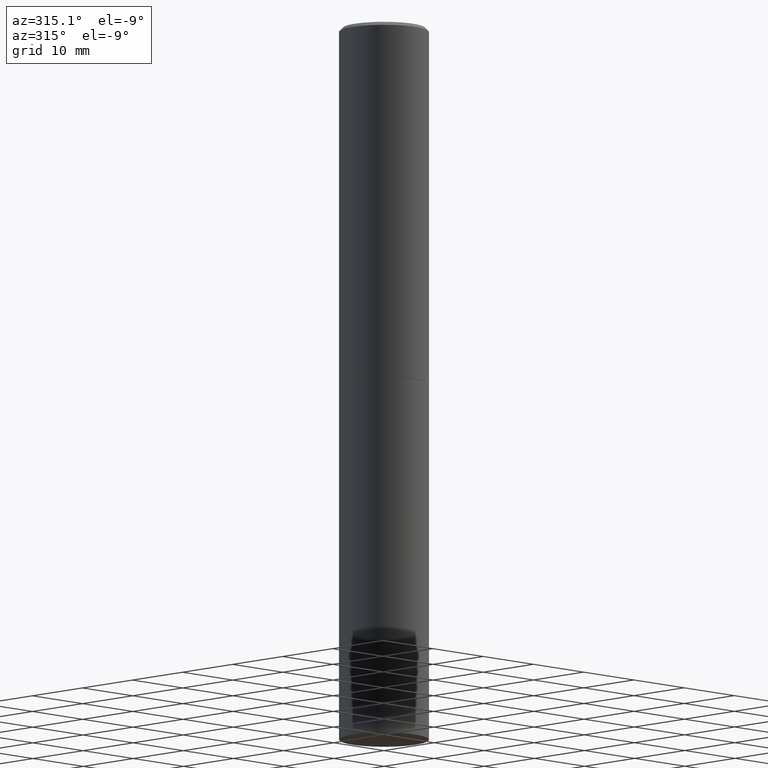
[diagram: clean part render]
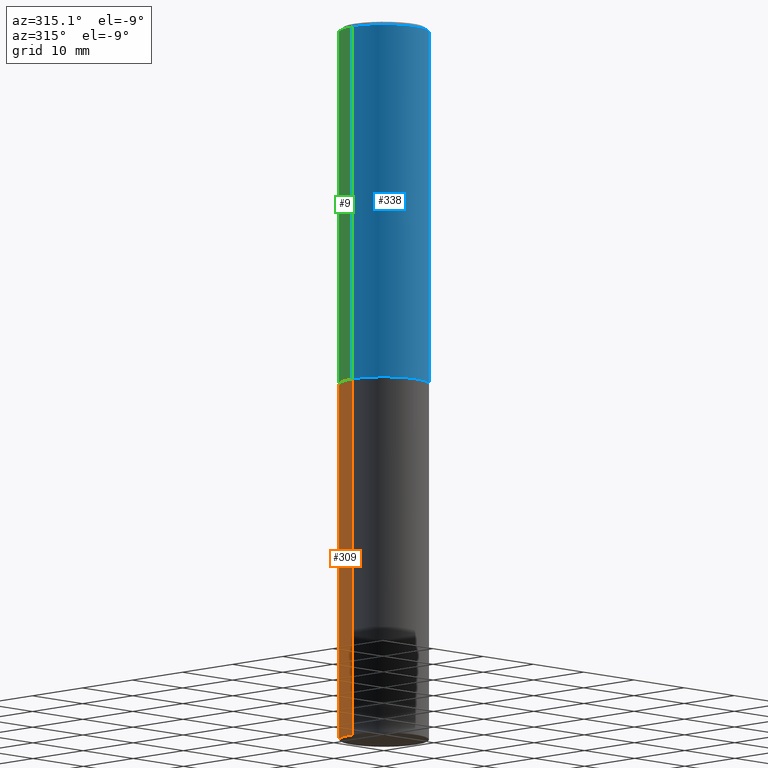
[diagram: same view with three faces highlighted in distinct colors, each labeled with its STEP entity id]
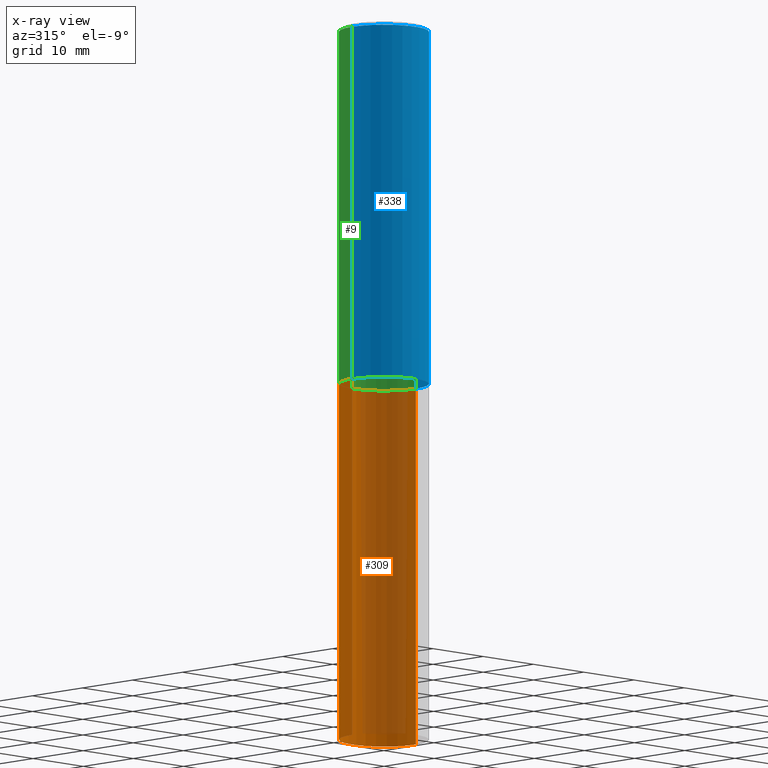
[diagram: x-ray of the same camera — body ghosted, the three highlighted faces saturated]
A machine part, auxiliary view with three faces highlighted in distinct colors.
The next image is the same camera in x-ray (body ghosted, the three faces saturated) — at least one of them is partly hidden behind the body in this view.
Their STEP definitions:

[orange] entity #309 — the highlighted cylindrical surface (partial cylindrical patch) has radius 6.35 mm, axis along (-0, 0, 1).
#8 = LINE ( 'NONE', #68, #218 ) ;
#11 = FACE_OUTER_BOUND ( 'NONE', #330, .T. ) ;
#12 = DIRECTION ( 'NONE',  ( -2.445468806185136877E-29, 3.491481338843145188E-15, 1.000000000000000000 ) ) ;
#17 = CARTESIAN_POINT ( 'NONE',  ( 0.2500000000000000000, -1.571166602479415059E-14, -4.000000000000000000 ) ) ;
#20 = LINE ( 'NONE', #161, #22 ) ;
#22 = VECTOR ( 'NONE', #12, 39.37007874015748143 ) ;
#23 = EDGE_CURVE ( 'NONE', #257, #217, #50, .T. ) ;
#35 = DIRECTION ( 'NONE',  ( 1.000000000000000000, -6.982962677686270655E-15, 0.000000000000000000 ) ) ;
#42 = DIRECTION ( 'NONE',  ( -2.445468806185136597E-29, 3.491481338843145583E-15, 1.000000000000000000 ) ) ;
#44 = CIRCLE ( 'NONE', #310, 0.2500000000000000000 ) ;
#50 = CIRCLE ( 'NONE', #81, 0.2500000000000000000 ) ;
#58 = ORIENTED_EDGE ( 'NONE', *, *, #241, .F. ) ;
#68 = CARTESIAN_POINT ( 'NONE',  ( -0.2500000000000000000, 1.776356839400250465E-15, -1.229733772563726445E-29 ) ) ;
#71 = AXIS2_PLACEMENT_3D ( 'NONE', #305, #254, #308 ) ;
#81 = AXIS2_PLACEMENT_3D ( 'NONE', #201, #183, #35 ) ;
#104 = EDGE_CURVE ( 'NONE', #257, #115, #20, .T. ) ;
#115 = VERTEX_POINT ( 'NONE', #187 ) ;
#123 = CARTESIAN_POINT ( 'NONE',  ( 4.890937612370273194E-29, -6.982962677686291165E-15, -2.000000000000000000 ) ) ;
#127 = ORIENTED_EDGE ( 'NONE', *, *, #231, .T. ) ;
#160 = DIRECTION ( 'NONE',  ( 1.000000000000000000, -6.982962677686266711E-15, 0.000000000000000000 ) ) ;
#161 = CARTESIAN_POINT ( 'NONE',  ( 0.2500000000000000000, -1.745740669421566678E-15, 1.219044193948983948E-29 ) ) ;
#183 = DIRECTION ( 'NONE',  ( -2.445468806185136597E-29, 3.491481338843145583E-15, 1.000000000000000000 ) ) ;
#186 = CYLINDRICAL_SURFACE ( 'NONE', #71, 0.2500000000000000000 ) ;
#187 = CARTESIAN_POINT ( 'NONE',  ( 0.2500000000000000000, -8.728703347107857054E-15, -2.000000000000000000 ) ) ;
#201 = CARTESIAN_POINT ( 'NONE',  ( 9.781875224740546387E-29, -1.396592535537258233E-14, -4.000000000000000000 ) ) ;
#211 = CARTESIAN_POINT ( 'NONE',  ( -0.2500000000000000000, -8.698087177129185889E-15, -4.000000000000000000 ) ) ;
#217 = VERTEX_POINT ( 'NONE', #211 ) ;
#218 = VECTOR ( 'NONE', #297, 39.37007874015748143 ) ;
#222 = ORIENTED_EDGE ( 'NONE', *, *, #23, .T. ) ;
#231 = EDGE_CURVE ( 'NONE', #217, #301, #8, .T. ) ;
#241 = EDGE_CURVE ( 'NONE', #115, #301, #44, .T. ) ;
#254 = DIRECTION ( 'NONE',  ( -2.445468806185136597E-29, 3.491481338843145583E-15, 1.000000000000000000 ) ) ;
#257 = VERTEX_POINT ( 'NONE', #17 ) ;
#294 = CARTESIAN_POINT ( 'NONE',  ( -0.2500000000000000000, -8.698087177129185889E-15, -2.000000000000000000 ) ) ;
#297 = DIRECTION ( 'NONE',  ( -2.445468806185136877E-29, 3.491481338843145188E-15, 1.000000000000000000 ) ) ;
#301 = VERTEX_POINT ( 'NONE', #294 ) ;
#305 = CARTESIAN_POINT ( 'NONE',  ( 0.000000000000000000, 0.000000000000000000, 0.000000000000000000 ) ) ;
#308 = DIRECTION ( 'NONE',  ( 1.000000000000000000, -6.982962677686266711E-15, 4.876176775795935793E-29 ) ) ;
#309 = ADVANCED_FACE ( 'NONE', ( #11 ), #186, .T. ) ;
#310 = AXIS2_PLACEMENT_3D ( 'NONE', #123, #42, #160 ) ;
#330 = EDGE_LOOP ( 'NONE', ( #222, #127, #58, #334 ) ) ;
#334 = ORIENTED_EDGE ( 'NONE', *, *, #104, .F. ) ;

[blue] entity #338 — the highlighted cylindrical surface (partial cylindrical patch) has radius 6.35 mm, axis along (-0, 0, 1).
#13 = EDGE_CURVE ( 'NONE', #224, #145, #239, .T. ) ;
#14 = LINE ( 'NONE', #63, #326 ) ;
#16 = VERTEX_POINT ( 'NONE', #236 ) ;
#21 = CARTESIAN_POINT ( 'NONE',  ( 0.2499999999999998890, -1.745740669421565889E-15, 1.219044193948983388E-29 ) ) ;
#32 = DIRECTION ( 'NONE',  ( -2.445468806185136597E-29, 3.491481338843145583E-15, 1.000000000000000000 ) ) ;
#47 = DIRECTION ( 'NONE',  ( -2.445468806185136597E-29, 3.491481338843145583E-15, 1.000000000000000000 ) ) ;
#51 = EDGE_CURVE ( 'NONE', #145, #70, #277, .T. ) ;
#53 = EDGE_CURVE ( 'NONE', #16, #70, #65, .T. ) ;
#63 = CARTESIAN_POINT ( 'NONE',  ( -0.2499999999999998890, 1.776356839400249676E-15, -1.229733772563726025E-29 ) ) ;
#64 = DIRECTION ( 'NONE',  ( -2.445468806185136597E-29, 3.491481338843145583E-15, 1.000000000000000000 ) ) ;
#65 = CIRCLE ( 'NONE', #333, 0.2499999999999998057 ) ;
#70 = VERTEX_POINT ( 'NONE', #247 ) ;
#74 = CARTESIAN_POINT ( 'NONE',  ( 0.000000000000000000, 0.000000000000000000, 0.000000000000000000 ) ) ;
#103 = ORIENTED_EDGE ( 'NONE', *, *, #53, .F. ) ;
#133 = AXIS2_PLACEMENT_3D ( 'NONE', #74, #47, #325 ) ;
#134 = CARTESIAN_POINT ( 'NONE',  ( 0.2500000000000000000, -8.725211865769014047E-15, -1.998999999999999888 ) ) ;
#140 = ORIENTED_EDGE ( 'NONE', *, *, #184, .F. ) ;
#145 = VERTEX_POINT ( 'NONE', #134 ) ;
#148 = DIRECTION ( 'NONE',  ( 1.000000000000000000, -6.982962677686266711E-15, 0.000000000000000000 ) ) ;
#174 = VECTOR ( 'NONE', #364, 39.37007874015748143 ) ;
#184 = EDGE_CURVE ( 'NONE', #224, #16, #14, .T. ) ;
#224 = VERTEX_POINT ( 'NONE', #322 ) ;
#229 = ORIENTED_EDGE ( 'NONE', *, *, #51, .T. ) ;
#236 = CARTESIAN_POINT ( 'NONE',  ( -0.2499999999999998057, 1.675911042644702196E-15, -0.02000000000000006287 ) ) ;
#239 = CIRCLE ( 'NONE', #292, 0.2500000000000000000 ) ;
#242 = EDGE_LOOP ( 'NONE', ( #140, #261, #229, #103 ) ) ;
#247 = CARTESIAN_POINT ( 'NONE',  ( 0.2499999999999998057, -1.784954126219744611E-15, -0.02000000000000006287 ) ) ;
#261 = ORIENTED_EDGE ( 'NONE', *, *, #13, .T. ) ;
#277 = LINE ( 'NONE', #21, #174 ) ;
#292 = AXIS2_PLACEMENT_3D ( 'NONE', #318, #64, #350 ) ;
#318 = CARTESIAN_POINT ( 'NONE',  ( 4.888492143564087591E-29, -6.979471196347447369E-15, -1.998999999999999888 ) ) ;
#322 = CARTESIAN_POINT ( 'NONE',  ( -0.2500000000000000000, -1.748293572161903489E-15, -1.998999999999999888 ) ) ;
#325 = DIRECTION ( 'NONE',  ( 1.000000000000000000, -6.982962677686266711E-15, 4.876176775795935793E-29 ) ) ;
#326 = VECTOR ( 'NONE', #349, 39.37007874015748143 ) ;
#328 = FACE_OUTER_BOUND ( 'NONE', #242, .T. ) ;
#331 = CARTESIAN_POINT ( 'NONE',  ( 4.890937612370288923E-31, -6.982962677686312563E-17, -0.02000000000000006287 ) ) ;
#333 = AXIS2_PLACEMENT_3D ( 'NONE', #331, #32, #148 ) ;
#335 = CYLINDRICAL_SURFACE ( 'NONE', #133, 0.2499999999999998890 ) ;
#338 = ADVANCED_FACE ( 'NONE', ( #328 ), #335, .T. ) ;
#349 = DIRECTION ( 'NONE',  ( -2.445468806185136877E-29, 3.491481338843145188E-15, 1.000000000000000000 ) ) ;
#350 = DIRECTION ( 'NONE',  ( 1.000000000000000000, -6.982962677686266711E-15, 0.000000000000000000 ) ) ;
#364 = DIRECTION ( 'NONE',  ( -2.445468806185136877E-29, 3.491481338843145188E-15, 1.000000000000000000 ) ) ;

[green] entity #9 — the highlighted cylindrical surface (partial cylindrical patch) has radius 6.35 mm, axis along (-0, 0, 1).
#2 = CARTESIAN_POINT ( 'NONE',  ( 4.888492143564087591E-29, -6.979471196347447369E-15, -1.998999999999999888 ) ) ;
#6 = DIRECTION ( 'NONE',  ( -2.445468806185136597E-29, 3.491481338843145583E-15, 1.000000000000000000 ) ) ;
#9 = ADVANCED_FACE ( 'NONE', ( #38 ), #62, .T. ) ;
#14 = LINE ( 'NONE', #63, #326 ) ;
#16 = VERTEX_POINT ( 'NONE', #236 ) ;
#21 = CARTESIAN_POINT ( 'NONE',  ( 0.2499999999999998890, -1.745740669421565889E-15, 1.219044193948983388E-29 ) ) ;
#25 = ORIENTED_EDGE ( 'NONE', *, *, #332, .T. ) ;
#38 = FACE_OUTER_BOUND ( 'NONE', #142, .T. ) ;
#45 = ORIENTED_EDGE ( 'NONE', *, *, #184, .T. ) ;
#51 = EDGE_CURVE ( 'NONE', #145, #70, #277, .T. ) ;
#62 = CYLINDRICAL_SURFACE ( 'NONE', #287, 0.2499999999999998890 ) ;
#63 = CARTESIAN_POINT ( 'NONE',  ( -0.2499999999999998890, 1.776356839400249676E-15, -1.229733772563726025E-29 ) ) ;
#70 = VERTEX_POINT ( 'NONE', #247 ) ;
#77 = DIRECTION ( 'NONE',  ( -2.445468806185136597E-29, 3.491481338843145583E-15, 1.000000000000000000 ) ) ;
#89 = DIRECTION ( 'NONE',  ( 1.000000000000000000, -6.982962677686266711E-15, 4.876176775795935793E-29 ) ) ;
#106 = ORIENTED_EDGE ( 'NONE', *, *, #111, .F. ) ;
#111 = EDGE_CURVE ( 'NONE', #70, #16, #356, .T. ) ;
#114 = DIRECTION ( 'NONE',  ( 1.000000000000000000, -6.982962677686266711E-15, 0.000000000000000000 ) ) ;
#117 = AXIS2_PLACEMENT_3D ( 'NONE', #291, #6, #128 ) ;
#121 = ORIENTED_EDGE ( 'NONE', *, *, #51, .F. ) ;
#128 = DIRECTION ( 'NONE',  ( 1.000000000000000000, -6.982962677686266711E-15, 0.000000000000000000 ) ) ;
#134 = CARTESIAN_POINT ( 'NONE',  ( 0.2500000000000000000, -8.725211865769014047E-15, -1.998999999999999888 ) ) ;
#142 = EDGE_LOOP ( 'NONE', ( #25, #45, #106, #121 ) ) ;
#145 = VERTEX_POINT ( 'NONE', #134 ) ;
#151 = AXIS2_PLACEMENT_3D ( 'NONE', #2, #77, #114 ) ;
#174 = VECTOR ( 'NONE', #364, 39.37007874015748143 ) ;
#184 = EDGE_CURVE ( 'NONE', #224, #16, #14, .T. ) ;
#224 = VERTEX_POINT ( 'NONE', #322 ) ;
#228 = CARTESIAN_POINT ( 'NONE',  ( 0.000000000000000000, 0.000000000000000000, 0.000000000000000000 ) ) ;
#236 = CARTESIAN_POINT ( 'NONE',  ( -0.2499999999999998057, 1.675911042644702196E-15, -0.02000000000000006287 ) ) ;
#247 = CARTESIAN_POINT ( 'NONE',  ( 0.2499999999999998057, -1.784954126219744611E-15, -0.02000000000000006287 ) ) ;
#277 = LINE ( 'NONE', #21, #174 ) ;
#284 = CIRCLE ( 'NONE', #151, 0.2500000000000000000 ) ;
#287 = AXIS2_PLACEMENT_3D ( 'NONE', #228, #343, #89 ) ;
#291 = CARTESIAN_POINT ( 'NONE',  ( 4.890937612370288923E-31, -6.982962677686312563E-17, -0.02000000000000006287 ) ) ;
#322 = CARTESIAN_POINT ( 'NONE',  ( -0.2500000000000000000, -1.748293572161903489E-15, -1.998999999999999888 ) ) ;
#326 = VECTOR ( 'NONE', #349, 39.37007874015748143 ) ;
#332 = EDGE_CURVE ( 'NONE', #145, #224, #284, .T. ) ;
#343 = DIRECTION ( 'NONE',  ( -2.445468806185136597E-29, 3.491481338843145583E-15, 1.000000000000000000 ) ) ;
#349 = DIRECTION ( 'NONE',  ( -2.445468806185136877E-29, 3.491481338843145188E-15, 1.000000000000000000 ) ) ;
#356 = CIRCLE ( 'NONE', #117, 0.2499999999999998057 ) ;
#364 = DIRECTION ( 'NONE',  ( -2.445468806185136877E-29, 3.491481338843145188E-15, 1.000000000000000000 ) ) ;